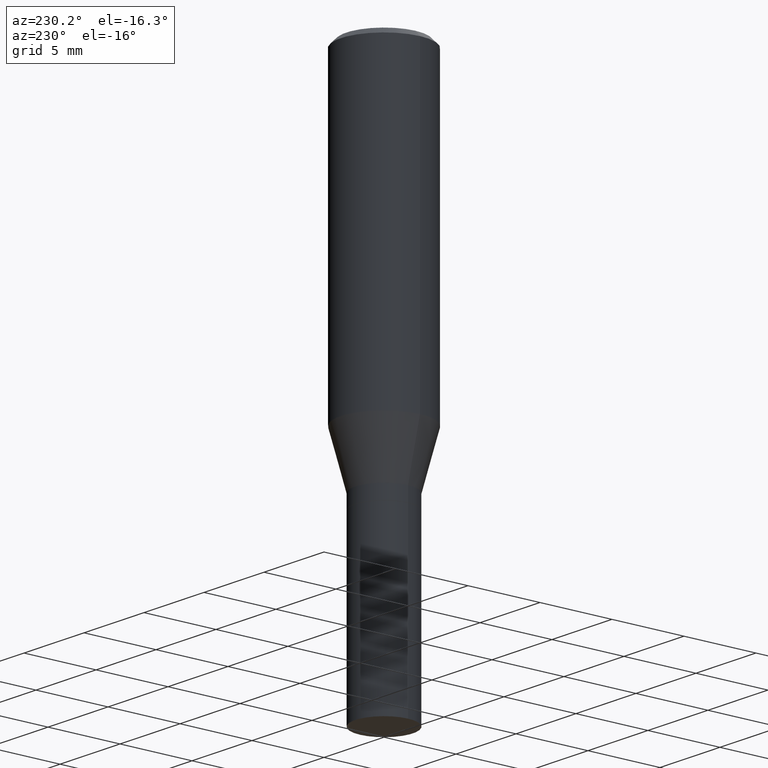
[diagram: clean part render]
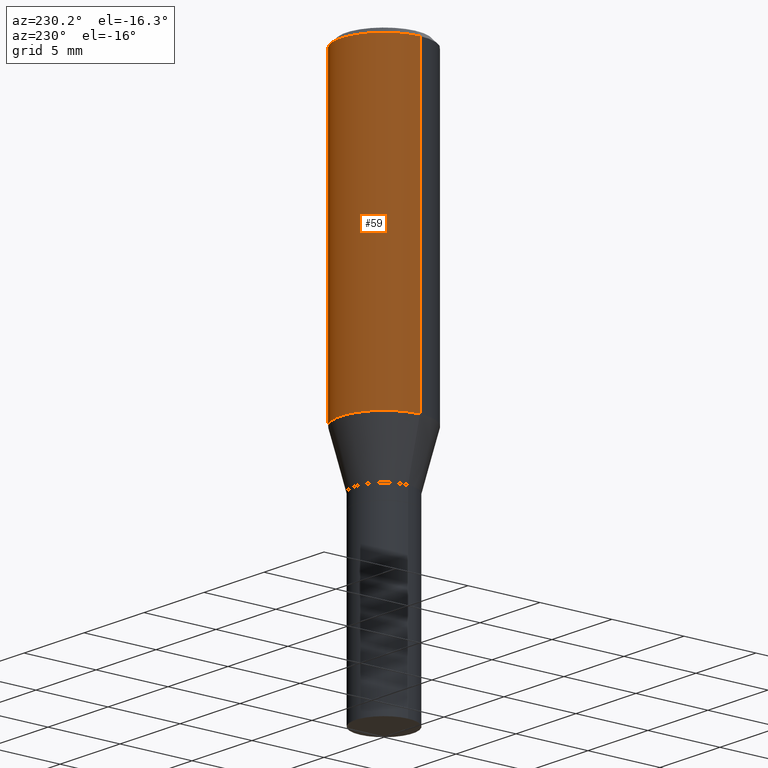
[diagram: same view with one face highlighted and labeled with its STEP entity id]
A machine part, auxiliary view. The second image highlights one B-rep face of the part: STEP entity #59.
In plain terms, the highlighted cylindrical surface (partial cylindrical patch) has radius 2.9997 mm, axis along (-0, 0, 1).
Its self-contained STEP definition (entity closure, byte-faithful):
#2 = AXIS2_PLACEMENT_3D ( 'NONE', #320, #461, #108 ) ;
#31 = DIRECTION ( 'NONE',  ( 1.000000000000000000, -6.982962677686266711E-15, 4.876176775795936353E-29 ) ) ;
#36 = DIRECTION ( 'NONE',  ( -2.445468806185136877E-29, 3.491481338843145188E-15, 1.000000000000000000 ) ) ;
#47 = VERTEX_POINT ( 'NONE', #295 ) ;
#59 = ADVANCED_FACE ( 'NONE', ( #387 ), #315, .T. ) ;
#101 = ORIENTED_EDGE ( 'NONE', *, *, #252, .F. ) ;
#108 = DIRECTION ( 'NONE',  ( 1.000000000000000000, -6.982962677686266711E-15, 0.000000000000000000 ) ) ;
#114 = CARTESIAN_POINT ( 'NONE',  ( 0.1180999999999999966, -3.765017257078630630E-15, -0.8421438007221657696 ) ) ;
#139 = AXIS2_PLACEMENT_3D ( 'NONE', #357, #143, #183 ) ;
#142 = EDGE_LOOP ( 'NONE', ( #176, #242, #154, #101 ) ) ;
#143 = DIRECTION ( 'NONE',  ( -2.445468806185136597E-29, 3.491481338843145583E-15, 1.000000000000000000 ) ) ;
#149 = CARTESIAN_POINT ( 'NONE',  ( -0.1180999999999999966, -6.571998215305863288E-16, -0.01499999999999996995 ) ) ;
#154 = ORIENTED_EDGE ( 'NONE', *, *, #452, .F. ) ;
#162 = EDGE_CURVE ( 'NONE', #205, #423, #448, .T. ) ;
#176 = ORIENTED_EDGE ( 'NONE', *, *, #290, .T. ) ;
#183 = DIRECTION ( 'NONE',  ( 1.000000000000000000, -6.982962677686269077E-15, 0.000000000000000000 ) ) ;
#205 = VERTEX_POINT ( 'NONE', #420 ) ;
#242 = ORIENTED_EDGE ( 'NONE', *, *, #162, .T. ) ;
#252 = EDGE_CURVE ( 'NONE', #286, #47, #382, .T. ) ;
#286 = VERTEX_POINT ( 'NONE', #114 ) ;
#290 = EDGE_CURVE ( 'NONE', #286, #205, #401, .T. ) ;
#295 = CARTESIAN_POINT ( 'NONE',  ( 0.1180999999999999966, -8.770601123173952432E-16, -0.01499999999999996995 ) ) ;
#298 = CIRCLE ( 'NONE', #2, 0.1180999999999999966 ) ;
#311 = VECTOR ( 'NONE', #36, 39.37007874015748143 ) ;
#315 = CYLINDRICAL_SURFACE ( 'NONE', #375, 0.1180999999999999966 ) ;
#320 = CARTESIAN_POINT ( 'NONE',  ( 3.668203209277697643E-31, -5.237222008264707922E-17, -0.01499999999999996995 ) ) ;
#347 = DIRECTION ( 'NONE',  ( -2.445468806185136877E-29, 3.491481338843145188E-15, 1.000000000000000000 ) ) ;
#349 = CARTESIAN_POINT ( 'NONE',  ( 0.000000000000000000, 0.000000000000000000, 0.000000000000000000 ) ) ;
#357 = CARTESIAN_POINT ( 'NONE',  ( 2.059436394988248282E-29, -2.940329364843882367E-15, -0.8421438007221657696 ) ) ;
#375 = AXIS2_PLACEMENT_3D ( 'NONE', #349, #457, #31 ) ;
#382 = LINE ( 'NONE', #464, #311 ) ;
#387 = FACE_OUTER_BOUND ( 'NONE', #142, .T. ) ;
#401 = CIRCLE ( 'NONE', #139, 0.1180999999999999966 ) ;
#420 = CARTESIAN_POINT ( 'NONE',  ( -0.1180999999999999966, -2.101178393911204564E-15, -0.8421438007221657696 ) ) ;
#423 = VERTEX_POINT ( 'NONE', #149 ) ;
#435 = VECTOR ( 'NONE', #347, 39.37007874015748143 ) ;
#448 = LINE ( 'NONE', #455, #435 ) ;
#452 = EDGE_CURVE ( 'NONE', #47, #423, #298, .T. ) ;
#455 = CARTESIAN_POINT ( 'NONE',  ( -0.1180999999999999966, 8.391509709326782957E-16, -5.809262341591043784E-30 ) ) ;
#457 = DIRECTION ( 'NONE',  ( -2.445468806185136597E-29, 3.491481338843145583E-15, 1.000000000000000000 ) ) ;
#461 = DIRECTION ( 'NONE',  ( -2.445468806185136597E-29, 3.491481338843145583E-15, 1.000000000000000000 ) ) ;
#464 = CARTESIAN_POINT ( 'NONE',  ( 0.1180999999999999966, -8.246878922347480654E-16, 5.758764772215000440E-30 ) ) ;